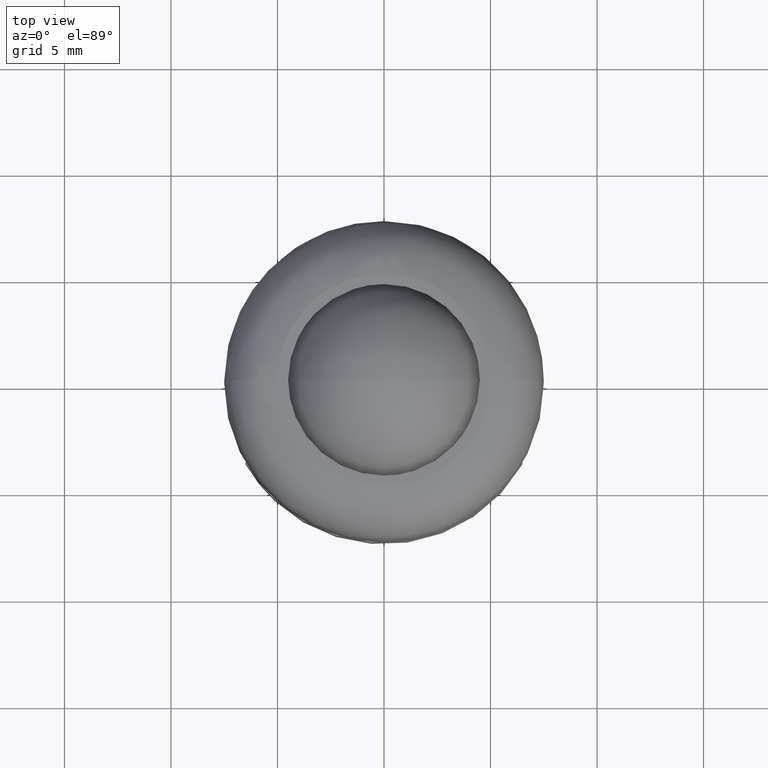
[diagram: clean part render]
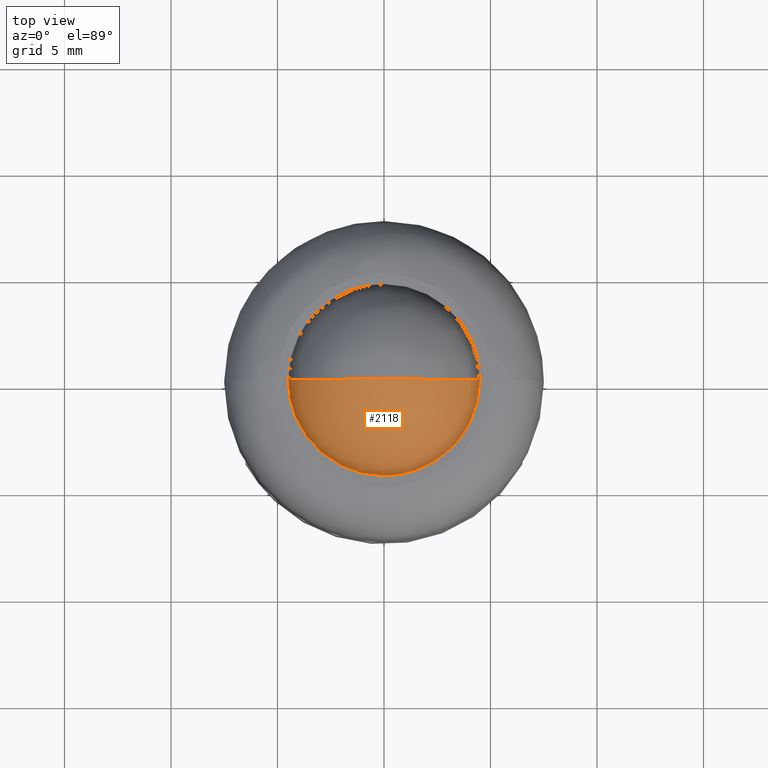
[diagram: same view with one face highlighted and labeled with its STEP entity id]
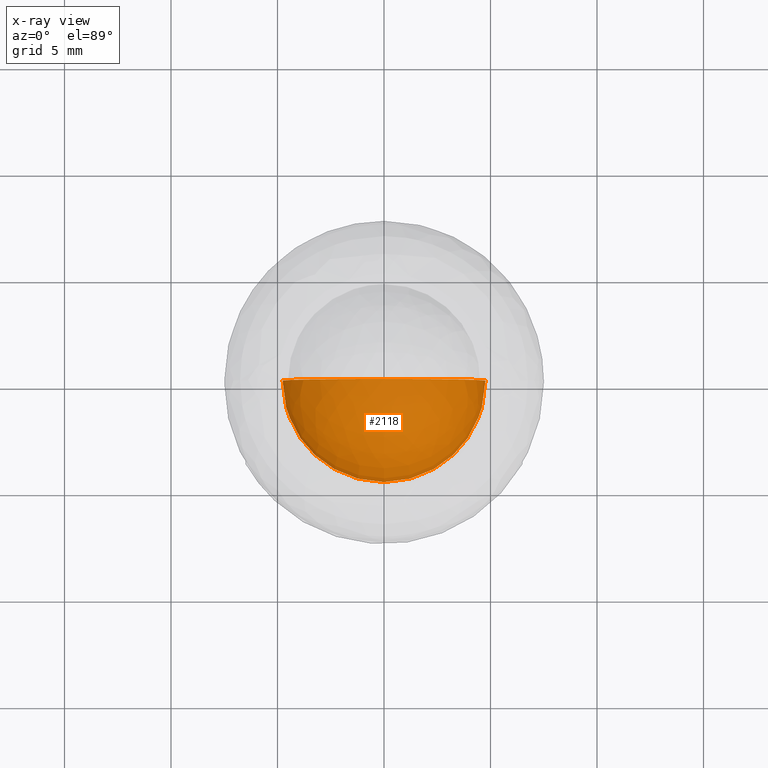
[diagram: x-ray of the same camera — body ghosted, the highlighted face saturated]
A machine part, top view. The second image highlights one B-rep face of the part: STEP entity #2118.
The next image is the same camera in x-ray: the body ghosted, the highlighted face saturated — about 0% of this face is hidden behind the body in this view.
In plain terms, the highlighted face is a freeform B-spline surface patch.
Its self-contained STEP definition (entity closure, byte-faithful):
#1999=CARTESIAN_POINT('',(-3.121845087131466,1.785937500000000,3.615654912868534));
#2000=CARTESIAN_POINT('',(-2.827331399666234,1.168160377358491,2.967724800445025));
#2001=CARTESIAN_POINT('',(-1.189274318907225,0.226785714285715,1.980402724371100));
#2002=CARTESIAN_POINT('',(1.189274318907225,0.226785714285715,1.980402724371100));
#2003=CARTESIAN_POINT('',(2.827331399666234,1.168160377358491,2.967724800445025));
#2004=CARTESIAN_POINT('',(3.121845087131466,1.785937500000000,3.615654912868534));
#2005=CARTESIAN_POINT('',(-3.769775199554978,1.168160377358491,3.910168600333770));
#2006=CARTESIAN_POINT('',(-3.567822956721675,0.226785714285715,3.169677043278325));
#2007=CARTESIAN_POINT('',(-1.611274883680757,-1.382661290322580,1.903675348957731));
#2008=CARTESIAN_POINT('',(1.611274883680757,-1.382661290322580,1.903675348957731));
#2009=CARTESIAN_POINT('',(3.567822956721675,0.226785714285715,3.169677043278325));
#2010=CARTESIAN_POINT('',(3.769775199554978,1.168160377358491,3.910168600333770));
#2011=CARTESIAN_POINT('',(-4.757097275628900,0.226785714285715,5.548225681092776));
#2012=CARTESIAN_POINT('',(-4.833824651042270,-1.382661290322580,5.126225116319244));
#2013=CARTESIAN_POINT('',(-2.497476069705173,-4.762499999999998,4.240023930294828));
#2014=CARTESIAN_POINT('',(2.497476069705173,-4.762499999999998,4.240023930294828));
#2015=CARTESIAN_POINT('',(4.833824651042270,-1.382661290322580,5.126225116319244));
#2016=CARTESIAN_POINT('',(4.757097275628900,0.226785714285715,5.548225681092776));
#2017=CARTESIAN_POINT('',(-4.757097275628900,0.226785714285715,7.926774318907228));
#2018=CARTESIAN_POINT('',(-4.833824651042270,-1.382661290322580,8.348774883680756));
#2019=CARTESIAN_POINT('',(-2.497476069705173,-4.762499999999998,9.234976069705173));
#2020=CARTESIAN_POINT('',(2.497476069705173,-4.762499999999998,9.234976069705173));
#2021=CARTESIAN_POINT('',(4.833824651042270,-1.382661290322580,8.348774883680756));
#2022=CARTESIAN_POINT('',(4.757097275628900,0.226785714285715,7.926774318907228));
#2023=CARTESIAN_POINT('',(-3.769775199554978,1.168160377358491,9.564831399666234));
#2024=CARTESIAN_POINT('',(-3.567822956721675,0.226785714285715,10.305322956721676));
#2025=CARTESIAN_POINT('',(-1.611274883680757,-1.382661290322580,11.571324651042270));
#2026=CARTESIAN_POINT('',(1.611274883680757,-1.382661290322580,11.571324651042270));
#2027=CARTESIAN_POINT('',(3.567822956721675,0.226785714285715,10.305322956721676));
#2028=CARTESIAN_POINT('',(3.769775199554978,1.168160377358491,9.564831399666234));
#2029=CARTESIAN_POINT('',(-3.121845087131466,1.785937500000000,9.859345087131466));
#2030=CARTESIAN_POINT('',(-2.827331399666234,1.168160377358491,10.507275199554982));
#2031=CARTESIAN_POINT('',(-1.189274318907225,0.226785714285715,11.494597275628903));
#2032=CARTESIAN_POINT('',(1.189274318907225,0.226785714285715,11.494597275628903));
#2033=CARTESIAN_POINT('',(2.827331399666234,1.168160377358491,10.507275199554982));
#2034=CARTESIAN_POINT('',(3.121845087131466,1.785937500000000,9.859345087131466));
#2042=(BOUNDED_SURFACE()B_SPLINE_SURFACE(2,2,((#1999,#2005,#2011,#2017,#2023,#2029),(#2000,#2006,#2012,#2018,#2024,#2030),(#2001,#2007,#2013,#2019,#2025,#2031),(#2002,#2008,#2014,#2020,#2026,#2032),(#2003,#2009,#2015,#2021,#2027,#2033),(#2004,#2010,#2016,#2022,#2028,#2034)),.UNSPECIFIED.,.F.,.F.,.U.)B_SPLINE_SURFACE_WITH_KNOTS((3,1,1,1,3),(3,1,1,1,3),(0.0,4.391166715965140,8.782333431930280,13.173500147895419,17.564666863860559),(0.0,4.391166715965142,8.782333431930285,13.173500147895430,17.564666863860570),.UNSPECIFIED.)GEOMETRIC_REPRESENTATION_ITEM()RATIONAL_B_SPLINE_SURFACE(((3.200000000000000,2.650000000000000,2.100000000000000,2.100000000000000,2.650000000000000,3.200000000000000),(2.650000000000000,2.100000000000000,1.550000000000000,1.550000000000000,2.100000000000000,2.650000000000000),(2.100000000000000,1.550000000000000,1.0,1.0,1.550000000000000,2.100000000000000),(2.100000000000000,1.550000000000000,1.0,1.0,1.550000000000000,2.100000000000000),(2.650000000000000,2.100000000000000,1.550000000000000,1.550000000000000,2.100000000000000,2.650000000000000),(3.200000000000000,2.650000000000000,2.100000000000000,2.100000000000000,2.650000000000000,3.200000000000000)))REPRESENTATION_ITEM('')SURFACE());
#2043=CARTESIAN_POINT('',(-4.762499999999988,0.0,6.737499655463823));
#2044=VERTEX_POINT('',#2043);
#2045=CARTESIAN_POINT('',(1.798075E-016,0.0,1.975000000000000));
#2046=VERTEX_POINT('',#2045);
#2047=CARTESIAN_POINT('',(-4.762499999999988,0.0,6.737499655463823));
#2048=CARTESIAN_POINT('',(-4.762541041625616,0.0,6.425793034145947));
#2049=CARTESIAN_POINT('',(-4.715466404238265,0.0,5.948513140772545));
#2050=CARTESIAN_POINT('',(-4.552318652992343,0.0,5.305614451760741));
#2051=CARTESIAN_POINT('',(-4.346665121226804,0.0,4.757480344348627));
#2052=CARTESIAN_POINT('',(-4.084225582580745,0.0,4.266487554076508));
#2053=CARTESIAN_POINT('',(-3.739188640394195,0.0,3.770150929753626));
#2054=CARTESIAN_POINT('',(-3.279859309920711,0.0,3.250607459848534));
#2055=CARTESIAN_POINT('',(-2.712811520393916,0.0,2.799641874517715));
#2056=CARTESIAN_POINT('',(-2.026562475296263,0.0,2.408101258924620));
#2057=CARTESIAN_POINT('',(-1.370039785167243,0.0,2.152529375513968));
#2058=CARTESIAN_POINT('',(-0.642886456863296,0.0,2.003282291491090));
#2059=CARTESIAN_POINT('',(-0.204553851741182,0.0,1.974993570571189));
#2060=CARTESIAN_POINT('',(1.798075E-016,0.0,1.975000000000000));
#2061=B_SPLINE_CURVE_WITH_KNOTS('',3,(#2047,#2048,#2049,#2050,#2051,#2052,#2053,#2054,#2055,#2056,#2057,#2058,#2059,#2060),.UNSPECIFIED.,.F.,.U.,(4,1,1,1,1,1,1,1,1,1,1,4),(0.000000019653880,0.935109872553232,1.431894946200273,1.987122182224871,2.688461121685358,3.097573232002087,3.798901886727346,4.763241907168698,5.260026963979723,6.165923986474443,6.867266778741795,7.480929047562936),.UNSPECIFIED.);
#2062=EDGE_CURVE('',#2044,#2046,#2061,.T.);
#2063=ORIENTED_EDGE('',*,*,#2062,.T.);
#2064=CARTESIAN_POINT('',(4.762499999999988,0.0,6.737499655463823));
#2065=VERTEX_POINT('',#2064);
#2066=CARTESIAN_POINT('',(4.762499999999988,0.0,6.737499655463823));
#2067=CARTESIAN_POINT('',(4.762635309680277,0.0,6.328370585480705));
#2068=CARTESIAN_POINT('',(4.687974498718260,0.0,5.753732129968774));
#2069=CARTESIAN_POINT('',(4.455943066070113,0.0,5.029155973971286));
#2070=CARTESIAN_POINT('',(4.229009860213541,0.0,4.521391914100433));
#2071=CARTESIAN_POINT('',(3.891080472247419,0.0,3.961473684358866));
#2072=CARTESIAN_POINT('',(3.436747436461143,0.0,3.411303651707008));
#2073=CARTESIAN_POINT('',(2.842327660861146,0.0,2.888936397522779));
#2074=CARTESIAN_POINT('',(2.227396457792050,0.0,2.507415723547140));
#2075=CARTESIAN_POINT('',(1.599497356062737,0.0,2.238283770732286));
#2076=CARTESIAN_POINT('',(0.886385667492228,0.0,2.033840601012260));
#2077=CARTESIAN_POINT('',(0.340931648296794,0.0,1.974935185851669));
#2078=CARTESIAN_POINT('',(1.798075E-016,0.0,1.975000000000000));
#2079=B_SPLINE_CURVE_WITH_KNOTS('',3,(#2066,#2067,#2068,#2069,#2070,#2071,#2072,#2073,#2074,#2075,#2076,#2077,#2078),.UNSPECIFIED.,.F.,.U.,(4,1,1,1,1,1,1,1,1,1,4),(0.000000019654680,1.227337859317403,1.724120119488465,2.279347331739882,2.893016942564894,3.682027305231553,4.412570755789680,5.260026963979669,5.844477492028766,6.458151673307692,7.480929047562937),.UNSPECIFIED.);
#2080=EDGE_CURVE('',#2065,#2046,#2079,.T.);
#2081=ORIENTED_EDGE('',*,*,#2080,.F.);
#2082=CARTESIAN_POINT('',(1.798075E-016,0.0,11.500000000000000));
#2083=VERTEX_POINT('',#2082);
#2084=CARTESIAN_POINT('',(1.798075E-016,0.0,11.500000000000000));
#2085=CARTESIAN_POINT('',(0.340932254420901,0.0,11.500062378683070));
#2086=CARTESIAN_POINT('',(0.905869385714640,0.0,11.439058847740350));
#2087=CARTESIAN_POINT('',(1.636749695401777,0.0,11.224664387219679));
#2088=CARTESIAN_POINT('',(2.207750609672758,0.0,10.971553270255290));
#2089=CARTESIAN_POINT('',(2.750951679025211,0.0,10.643709258651940));
#2090=CARTESIAN_POINT('',(3.221405915340349,0.0,10.262420533811261));
#2091=CARTESIAN_POINT('',(3.673487219805005,0.0,9.790495734348550));
#2092=CARTESIAN_POINT('',(4.060267777873754,0.0,9.262249384865370));
#2093=CARTESIAN_POINT('',(4.411129216498385,0.0,8.586004969313061));
#2094=CARTESIAN_POINT('',(4.687164392665378,0.0,7.750510840067319));
#2095=CARTESIAN_POINT('',(4.762574714091702,0.0,7.107654240912161));
#2096=CARTESIAN_POINT('',(4.762499999999988,0.0,6.737499655463823));
#2097=B_SPLINE_CURVE_WITH_KNOTS('',3,(#2084,#2085,#2086,#2087,#2088,#2089,#2090,#2091,#2092,#2093,#2094,#2095,#2096),.UNSPECIFIED.,.F.,.U.,(4,1,1,1,1,1,1,1,1,1,4),(0.000000019619872,1.022781349040153,1.694897086902979,2.279347450066884,2.893017092843461,3.594354027947532,4.091130500193886,4.850912680329783,5.552252065420321,6.370481482873172,7.480929435936119),.UNSPECIFIED.);
#2098=EDGE_CURVE('',#2083,#2065,#2097,.T.);
#2099=ORIENTED_EDGE('',*,*,#2098,.F.);
#2100=CARTESIAN_POINT('',(1.798075E-016,0.0,11.500000000000000));
#2101=CARTESIAN_POINT('',(-0.272741766397806,0.0,11.500017462256510));
#2102=CARTESIAN_POINT('',(-0.837701024999167,0.0,11.451348429470171));
#2103=CARTESIAN_POINT('',(-1.640409700173984,0.0,11.234514754360919));
#2104=CARTESIAN_POINT('',(-2.436797280641648,0.0,10.860846359603560));
#2105=CARTESIAN_POINT('',(-3.025276144083216,0.0,10.438234503799031));
#2106=CARTESIAN_POINT('',(-3.572823041113336,0.0,9.910472548943240));
#2107=CARTESIAN_POINT('',(-4.007975702461451,0.0,9.356417338457121));
#2108=CARTESIAN_POINT('',(-4.360690400406995,0.0,8.691561409351614));
#2109=CARTESIAN_POINT('',(-4.592765690923661,0.0,8.049175886986124));
#2110=CARTESIAN_POINT('',(-4.730138731214754,0.0,7.419348640367161));
#2111=CARTESIAN_POINT('',(-4.762510078432349,0.0,6.961535092772535));
#2112=CARTESIAN_POINT('',(-4.762499999999988,0.0,6.737499655463823));
#2113=B_SPLINE_CURVE_WITH_KNOTS('',3,(#2100,#2101,#2102,#2103,#2104,#2105,#2106,#2107,#2108,#2109,#2110,#2111,#2112),.UNSPECIFIED.,.F.,.U.,(4,1,1,1,1,1,1,1,1,1,4),(0.000000019615894,0.818224191865444,1.694897086900086,2.483904598132175,3.448243725220227,3.857343124563582,4.763242154519689,5.552252065420038,6.107480505346492,6.808823178211622,7.480929435936116),.UNSPECIFIED.);
#2114=EDGE_CURVE('',#2083,#2044,#2113,.T.);
#2115=ORIENTED_EDGE('',*,*,#2114,.T.);
#2116=EDGE_LOOP('',(#2063,#2081,#2099,#2115));
#2117=FACE_OUTER_BOUND('',#2116,.T.);
#2118=ADVANCED_FACE('',(#2117),#2042,.T.);